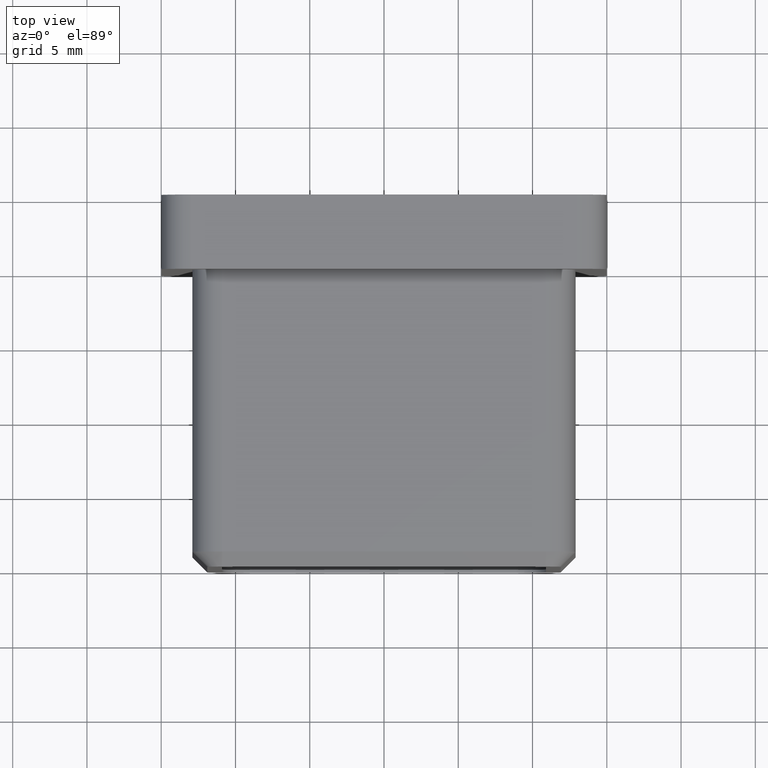
[diagram: clean part render]
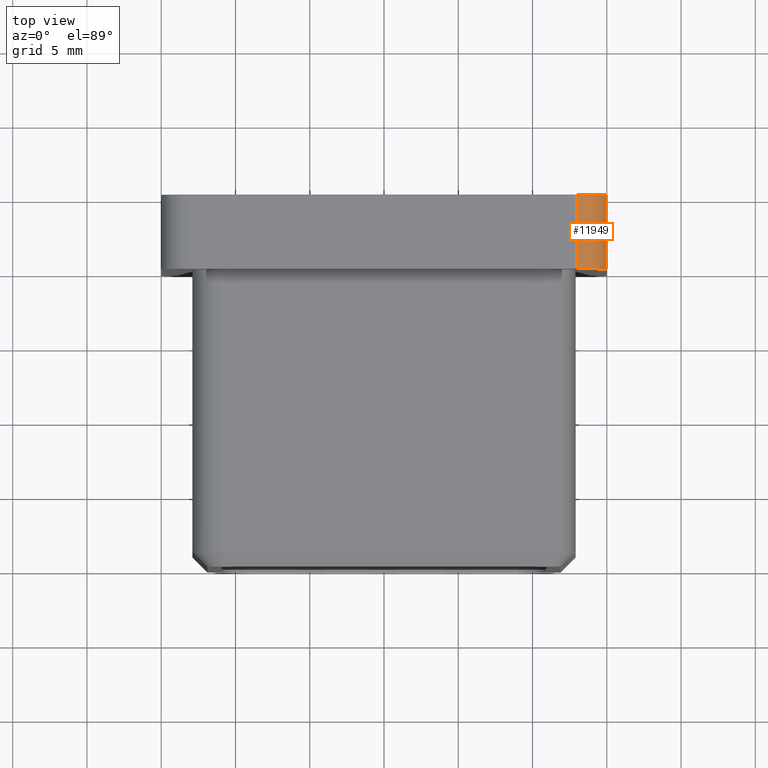
[diagram: same view with one face highlighted and labeled with its STEP entity id]
A machine part, top view. The second image highlights one B-rep face of the part: STEP entity #11949.
In plain terms, the highlighted cylindrical surface (edge-blend (fillet) strip) has radius 2 mm, axis along (0, -1, 0).
Its self-contained STEP definition (entity closure, byte-faithful):
#30 = DIRECTION ( 'NONE',  ( -0.0000000000000000000, -1.000000000000000000, -0.0000000000000000000 ) ) ;
#906 = FACE_OUTER_BOUND ( 'NONE', #12978, .T. ) ;
#2314 = VERTEX_POINT ( 'NONE', #17131 ) ;
#2864 = VERTEX_POINT ( 'NONE', #10484 ) ;
#2930 = CIRCLE ( 'NONE', #4358, 2.000000000000000000 ) ;
#3681 = DIRECTION ( 'NONE',  ( 0.0000000000000000000, 1.000000000000000000, 0.0000000000000000000 ) ) ;
#4358 = AXIS2_PLACEMENT_3D ( 'NONE', #7982, #3681, #5194 ) ;
#4932 = AXIS2_PLACEMENT_3D ( 'NONE', #12962, #14322, #5782 ) ;
#5194 = DIRECTION ( 'NONE',  ( 0.0000000000000000000, 0.0000000000000000000, 1.000000000000000000 ) ) ;
#5316 = ORIENTED_EDGE ( 'NONE', *, *, #12360, .F. ) ;
#5394 = VERTEX_POINT ( 'NONE', #13145 ) ;
#5782 = DIRECTION ( 'NONE',  ( 0.0000000000000000000, 0.0000000000000000000, -1.000000000000000000 ) ) ;
#6214 = EDGE_CURVE ( 'NONE', #2864, #14769, #12596, .T. ) ;
#7321 = ORIENTED_EDGE ( 'NONE', *, *, #6214, .F. ) ;
#7931 = LINE ( 'NONE', #18287, #16409 ) ;
#7982 = CARTESIAN_POINT ( 'NONE',  ( 13.00000000000000400, 5.000000000000000000, 13.00000000000000500 ) ) ;
#8293 = DIRECTION ( 'NONE',  ( 0.0000000000000000000, -1.000000000000000000, 0.0000000000000000000 ) ) ;
#8388 = CARTESIAN_POINT ( 'NONE',  ( 13.00000000000000400, 0.0000000000000000000, 13.00000000000000500 ) ) ;
#9060 = EDGE_CURVE ( 'NONE', #14769, #2314, #2930, .T. ) ;
#9192 = AXIS2_PLACEMENT_3D ( 'NONE', #8388, #30, #16934 ) ;
#10484 = CARTESIAN_POINT ( 'NONE',  ( 13.00000000000000400, 0.0000000000000000000, 15.00000000000000700 ) ) ;
#10880 = CARTESIAN_POINT ( 'NONE',  ( 13.00000000000000400, 5.000000000000000000, 15.00000000000000700 ) ) ;
#11524 = DIRECTION ( 'NONE',  ( -0.0000000000000000000, 1.000000000000000000, -0.0000000000000000000 ) ) ;
#11712 = CARTESIAN_POINT ( 'NONE',  ( 13.00000000000000400, 5.000000000000000000, 15.00000000000000700 ) ) ;
#11949 = ADVANCED_FACE ( 'NONE', ( #906 ), #15601, .T. ) ;
#12294 = ORIENTED_EDGE ( 'NONE', *, *, #9060, .F. ) ;
#12360 = EDGE_CURVE ( 'NONE', #2314, #5394, #7931, .T. ) ;
#12596 = LINE ( 'NONE', #11712, #17710 ) ;
#12962 = CARTESIAN_POINT ( 'NONE',  ( 13.00000000000000400, 5.000000000000000000, 13.00000000000000500 ) ) ;
#12978 = EDGE_LOOP ( 'NONE', ( #12294, #7321, #16215, #5316 ) ) ;
#13145 = CARTESIAN_POINT ( 'NONE',  ( 15.00000000000000400, 0.0000000000000000000, 13.00000000000000500 ) ) ;
#14322 = DIRECTION ( 'NONE',  ( 0.0000000000000000000, -1.000000000000000000, 0.0000000000000000000 ) ) ;
#14769 = VERTEX_POINT ( 'NONE', #10880 ) ;
#15601 = CYLINDRICAL_SURFACE ( 'NONE', #4932, 2.000000000000000000 ) ;
#16215 = ORIENTED_EDGE ( 'NONE', *, *, #16703, .F. ) ;
#16370 = CIRCLE ( 'NONE', #9192, 2.000000000000000000 ) ;
#16409 = VECTOR ( 'NONE', #8293, 1000.000000000000000 ) ;
#16703 = EDGE_CURVE ( 'NONE', #5394, #2864, #16370, .T. ) ;
#16934 = DIRECTION ( 'NONE',  ( 0.0000000000000000000, 0.0000000000000000000, 1.000000000000000000 ) ) ;
#17131 = CARTESIAN_POINT ( 'NONE',  ( 15.00000000000000400, 5.000000000000000000, 13.00000000000000500 ) ) ;
#17710 = VECTOR ( 'NONE', #11524, 1000.000000000000000 ) ;
#18287 = CARTESIAN_POINT ( 'NONE',  ( 15.00000000000000400, 5.000000000000000000, 13.00000000000000500 ) ) ;